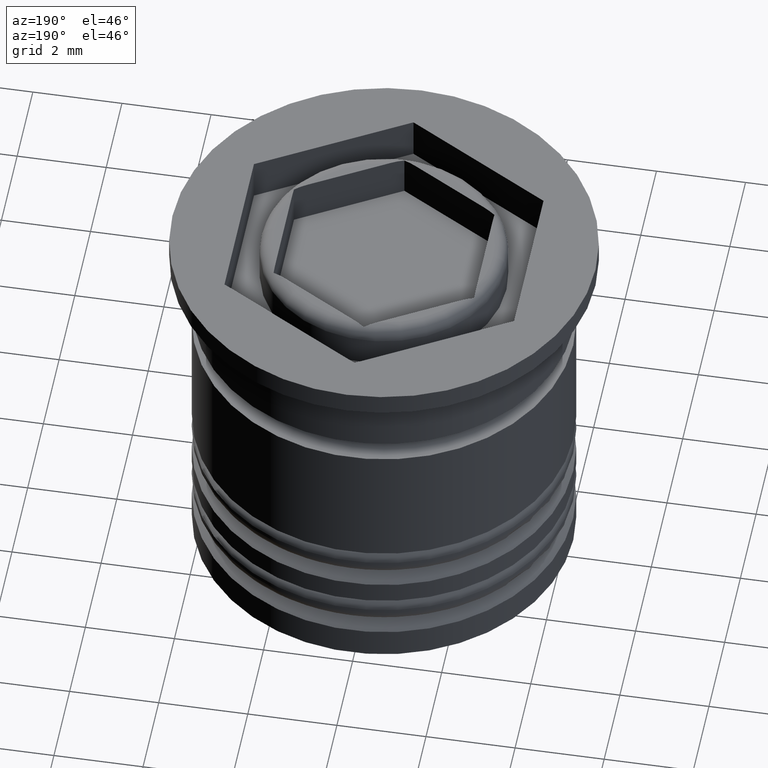
[diagram: clean part render]
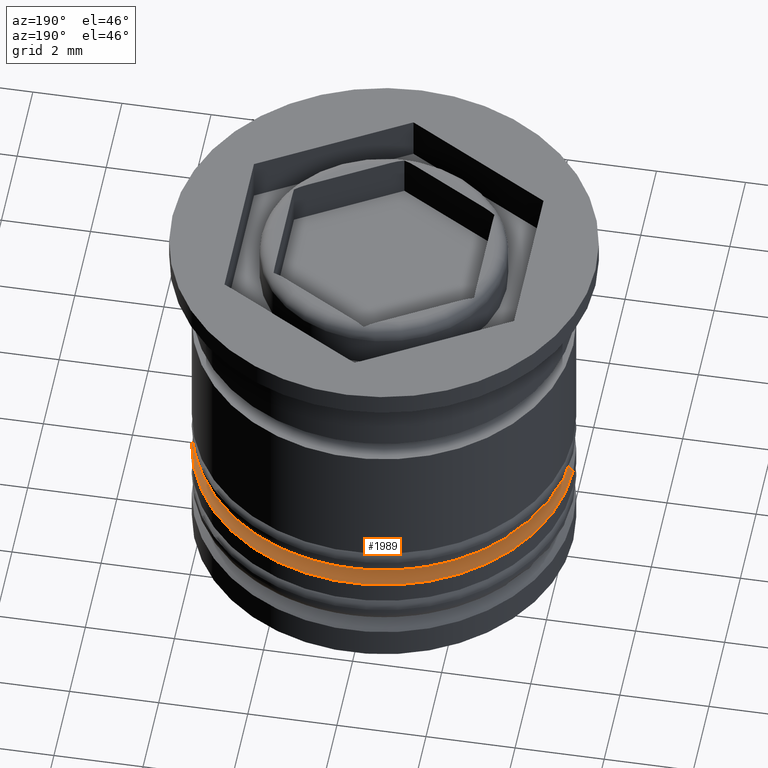
[diagram: same view with one face highlighted and labeled with its STEP entity id]
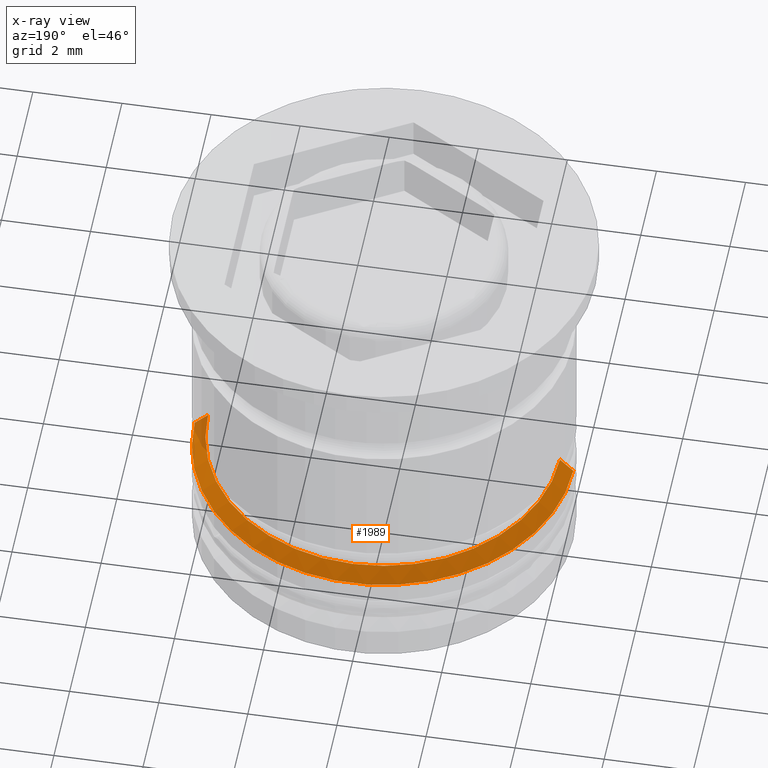
[diagram: x-ray of the same camera — body ghosted, the highlighted face saturated]
A machine part, auxiliary view. The second image highlights one B-rep face of the part: STEP entity #1989.
The next image is the same camera in x-ray: the body ghosted, the highlighted face saturated — about 3% of this face is hidden behind the body in this view.
In plain terms, the highlighted conical surface has half-angle 45 deg.
Its self-contained STEP definition (entity closure, byte-faithful):
#3 = CARTESIAN_POINT ( 'NONE',  ( 4.250000000000000000, 0.000000000000000000, -6.500000000000002665 ) ) ;
#12 = LINE ( 'NONE', #641, #779 ) ;
#25 = CONICAL_SURFACE ( 'NONE', #479, 3.749999999999991562, 0.7853981633974530530 ) ;
#178 = VERTEX_POINT ( 'NONE', #1912 ) ;
#225 = CARTESIAN_POINT ( 'NONE',  ( 3.749999999999991562, 4.592425496802564111E-16, -5.999999999999998224 ) ) ;
#325 = DIRECTION ( 'NONE',  ( 0.000000000000000000, 0.000000000000000000, -1.000000000000000000 ) ) ;
#343 = CIRCLE ( 'NONE', #1960, 3.950000000000000178 ) ;
#449 = DIRECTION ( 'NONE',  ( -0.000000000000000000, -0.000000000000000000, 1.000000000000000000 ) ) ;
#458 = DIRECTION ( 'NONE',  ( -1.000000000000000000, 0.000000000000000000, 0.000000000000000000 ) ) ;
#464 = DIRECTION ( 'NONE',  ( 1.000000000000000000, 0.000000000000000000, 0.000000000000000000 ) ) ;
#474 = DIRECTION ( 'NONE',  ( 0.000000000000000000, 0.000000000000000000, -1.000000000000000000 ) ) ;
#479 = AXIS2_PLACEMENT_3D ( 'NONE', #1880, #325, #458 ) ;
#482 = DIRECTION ( 'NONE',  ( -0.7071067811865507924, 0.000000000000000000, -0.7071067811865441310 ) ) ;
#526 = ORIENTED_EDGE ( 'NONE', *, *, #1749, .F. ) ;
#577 = EDGE_CURVE ( 'NONE', #1399, #1249, #1813, .T. ) ;
#618 = CARTESIAN_POINT ( 'NONE',  ( 0.000000000000000000, 0.000000000000000000, -6.500000000000002665 ) ) ;
#641 = CARTESIAN_POINT ( 'NONE',  ( -3.749999999999991562, 0.000000000000000000, -5.999999999999998224 ) ) ;
#697 = EDGE_LOOP ( 'NONE', ( #526, #1953, #1834, #828 ) ) ;
#749 = VECTOR ( 'NONE', #1954, 1000.000000000000000 ) ;
#779 = VECTOR ( 'NONE', #482, 1000.000000000000000 ) ;
#828 = ORIENTED_EDGE ( 'NONE', *, *, #2034, .F. ) ;
#895 = CARTESIAN_POINT ( 'NONE',  ( -3.950000000000000178, 4.837354856632045057E-16, -6.200000000000004619 ) ) ;
#917 = CIRCLE ( 'NONE', #1737, 4.250000000000000000 ) ;
#1091 = FACE_OUTER_BOUND ( 'NONE', #697, .T. ) ;
#1227 = CARTESIAN_POINT ( 'NONE',  ( 0.000000000000000000, 0.000000000000000000, -6.200000000000004619 ) ) ;
#1249 = VERTEX_POINT ( 'NONE', #3 ) ;
#1399 = VERTEX_POINT ( 'NONE', #1406 ) ;
#1406 = CARTESIAN_POINT ( 'NONE',  ( 3.950000000000000178, 0.000000000000000000, -6.200000000000004619 ) ) ;
#1463 = EDGE_CURVE ( 'NONE', #178, #1249, #917, .T. ) ;
#1727 = VERTEX_POINT ( 'NONE', #895 ) ;
#1737 = AXIS2_PLACEMENT_3D ( 'NONE', #618, #474, #464 ) ;
#1749 = EDGE_CURVE ( 'NONE', #1399, #1727, #343, .T. ) ;
#1813 = LINE ( 'NONE', #225, #749 ) ;
#1834 = ORIENTED_EDGE ( 'NONE', *, *, #1463, .F. ) ;
#1880 = CARTESIAN_POINT ( 'NONE',  ( 0.000000000000000000, 0.000000000000000000, -5.999999999999998224 ) ) ;
#1912 = CARTESIAN_POINT ( 'NONE',  ( -4.250000000000000000, 5.204748896376250699E-16, -6.500000000000002665 ) ) ;
#1953 = ORIENTED_EDGE ( 'NONE', *, *, #577, .T. ) ;
#1954 = DIRECTION ( 'NONE',  ( 0.7071067811865507924, 8.659560562354974766E-17, -0.7071067811865441310 ) ) ;
#1960 = AXIS2_PLACEMENT_3D ( 'NONE', #1227, #449, #2016 ) ;
#1989 = ADVANCED_FACE ( 'NONE', ( #1091 ), #25, .T. ) ;
#2016 = DIRECTION ( 'NONE',  ( -1.000000000000000000, 0.000000000000000000, 0.000000000000000000 ) ) ;
#2034 = EDGE_CURVE ( 'NONE', #1727, #178, #12, .T. ) ;